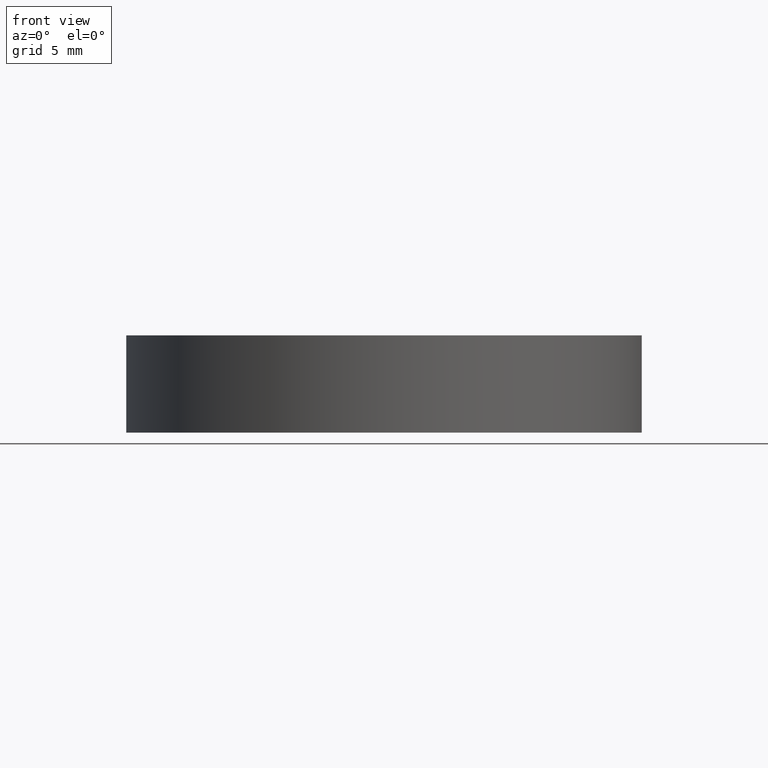
[diagram: clean part render]
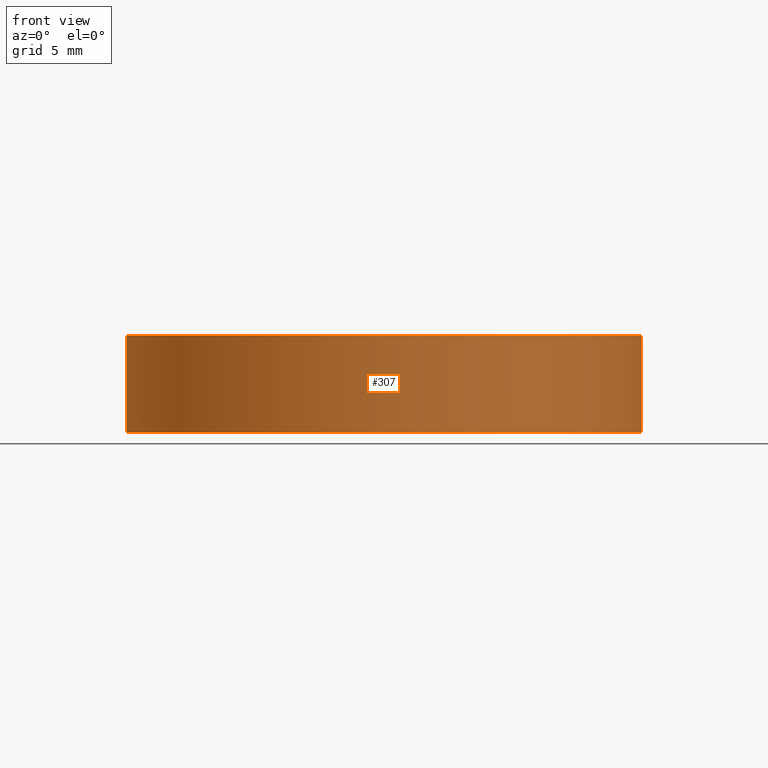
[diagram: same view with one face highlighted and labeled with its STEP entity id]
A machine part, front view. The second image highlights one B-rep face of the part: STEP entity #307.
In plain terms, the highlighted cylindrical surface (partial cylindrical patch) has radius 20.65 mm, axis along (-0, -0, -1).
Its self-contained STEP definition (entity closure, byte-faithful):
#19 = DIRECTION ( 'NONE',  ( -0.0000000000000000000, -0.0000000000000000000, -1.000000000000000000 ) ) ;
#46 = LINE ( 'NONE', #115, #200 ) ;
#47 = EDGE_LOOP ( 'NONE', ( #353, #181, #418, #330 ) ) ;
#65 = VECTOR ( 'NONE', #75, 1000.000000000000000 ) ;
#74 = CARTESIAN_POINT ( 'NONE',  ( -20.64999999999999900, 0.0000000000000000000, 7.799999999999999800 ) ) ;
#75 = DIRECTION ( 'NONE',  ( -0.0000000000000000000, -0.0000000000000000000, -1.000000000000000000 ) ) ;
#78 = CIRCLE ( 'NONE', #575, 20.64999999999999900 ) ;
#97 = FACE_OUTER_BOUND ( 'NONE', #47, .T. ) ;
#114 = CYLINDRICAL_SURFACE ( 'NONE', #325, 20.64999999999999900 ) ;
#115 = CARTESIAN_POINT ( 'NONE',  ( 20.64999999999999900, 2.528895640239284100E-015, 7.799999999999999800 ) ) ;
#117 = DIRECTION ( 'NONE',  ( -0.0000000000000000000, -0.0000000000000000000, -1.000000000000000000 ) ) ;
#167 = CARTESIAN_POINT ( 'NONE',  ( 20.64999999999999900, 2.528895640239284100E-015, 0.0000000000000000000 ) ) ;
#174 = CARTESIAN_POINT ( 'NONE',  ( 0.0000000000000000000, 0.0000000000000000000, 0.0000000000000000000 ) ) ;
#181 = ORIENTED_EDGE ( 'NONE', *, *, #333, .F. ) ;
#200 = VECTOR ( 'NONE', #117, 1000.000000000000000 ) ;
#224 = CARTESIAN_POINT ( 'NONE',  ( -20.64999999999999900, 0.0000000000000000000, 0.0000000000000000000 ) ) ;
#276 = EDGE_CURVE ( 'NONE', #482, #323, #46, .T. ) ;
#278 = DIRECTION ( 'NONE',  ( 0.0000000000000000000, 0.0000000000000000000, 1.000000000000000000 ) ) ;
#283 = CARTESIAN_POINT ( 'NONE',  ( 20.64999999999999900, 2.528895640239284100E-015, 7.799999999999999800 ) ) ;
#307 = ADVANCED_FACE ( 'NONE', ( #97 ), #114, .T. ) ;
#323 = VERTEX_POINT ( 'NONE', #167 ) ;
#325 = AXIS2_PLACEMENT_3D ( 'NONE', #469, #19, #612 ) ;
#330 = ORIENTED_EDGE ( 'NONE', *, *, #368, .T. ) ;
#333 = EDGE_CURVE ( 'NONE', #549, #482, #78, .T. ) ;
#353 = ORIENTED_EDGE ( 'NONE', *, *, #276, .F. ) ;
#354 = VERTEX_POINT ( 'NONE', #224 ) ;
#368 = EDGE_CURVE ( 'NONE', #354, #323, #481, .T. ) ;
#391 = CARTESIAN_POINT ( 'NONE',  ( -20.64999999999999900, 0.0000000000000000000, 7.799999999999999800 ) ) ;
#397 = EDGE_CURVE ( 'NONE', #549, #354, #529, .T. ) ;
#418 = ORIENTED_EDGE ( 'NONE', *, *, #397, .T. ) ;
#469 = CARTESIAN_POINT ( 'NONE',  ( 0.0000000000000000000, 0.0000000000000000000, 7.799999999999999800 ) ) ;
#481 = CIRCLE ( 'NONE', #552, 20.64999999999999900 ) ;
#482 = VERTEX_POINT ( 'NONE', #283 ) ;
#512 = DIRECTION ( 'NONE',  ( 1.000000000000000000, 0.0000000000000000000, 0.0000000000000000000 ) ) ;
#529 = LINE ( 'NONE', #74, #65 ) ;
#549 = VERTEX_POINT ( 'NONE', #391 ) ;
#552 = AXIS2_PLACEMENT_3D ( 'NONE', #174, #278, #617 ) ;
#560 = DIRECTION ( 'NONE',  ( 0.0000000000000000000, 0.0000000000000000000, 1.000000000000000000 ) ) ;
#575 = AXIS2_PLACEMENT_3D ( 'NONE', #614, #560, #512 ) ;
#612 = DIRECTION ( 'NONE',  ( -1.000000000000000000, 0.0000000000000000000, 0.0000000000000000000 ) ) ;
#614 = CARTESIAN_POINT ( 'NONE',  ( 0.0000000000000000000, 0.0000000000000000000, 7.799999999999999800 ) ) ;
#617 = DIRECTION ( 'NONE',  ( 1.000000000000000000, 0.0000000000000000000, 0.0000000000000000000 ) ) ;